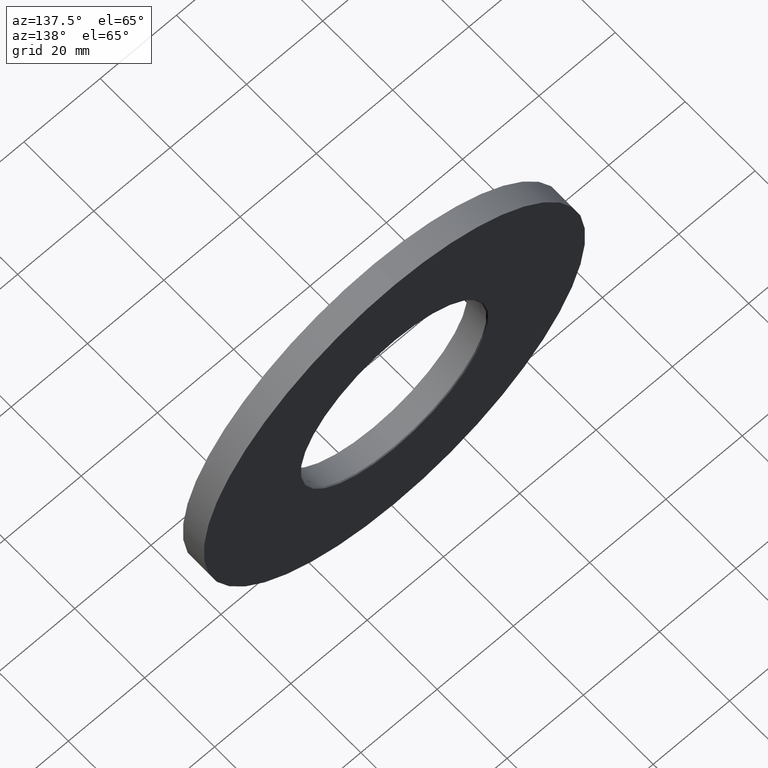
[diagram: clean part render]
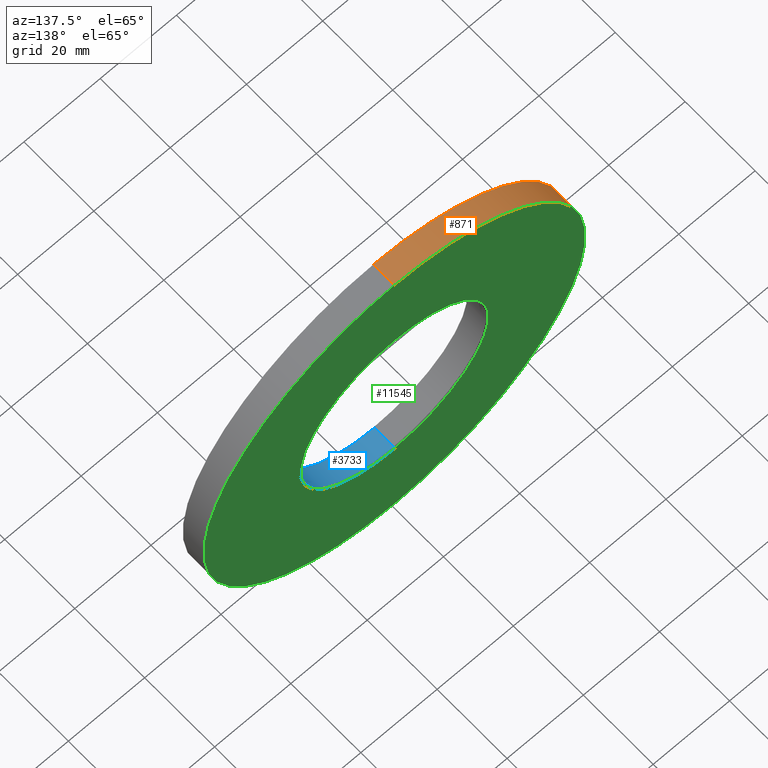
[diagram: same view with three faces highlighted in distinct colors, each labeled with its STEP entity id]
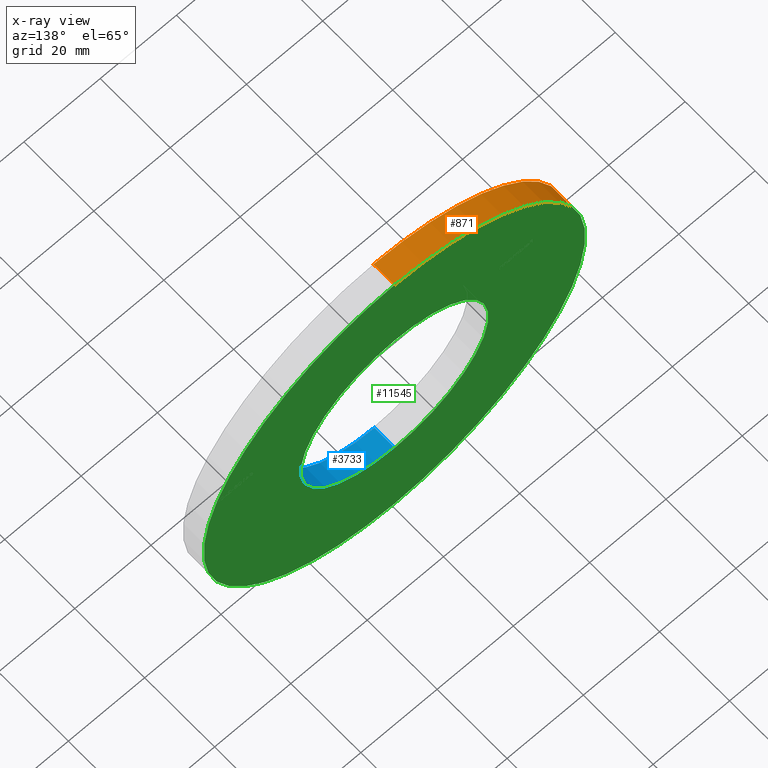
[diagram: x-ray of the same camera — body ghosted, the three highlighted faces saturated]
A machine part, auxiliary view with three faces highlighted in distinct colors.
The next image is the same camera in x-ray (body ghosted, the three faces saturated) — at least one of them is partly hidden behind the body in this view.
Their STEP definitions:

[orange] entity #871 — the highlighted cylindrical surface (partial cylindrical patch) has radius 50 mm, axis along (-0, -1, -0).
#190 = ORIENTED_EDGE ( 'NONE', *, *, #11012, .T. ) ;
#196 = ORIENTED_EDGE ( 'NONE', *, *, #680, .F. ) ;
#462 = VECTOR ( 'NONE', #13812, 1000.000000000000000 ) ;
#680 = EDGE_CURVE ( 'NONE', #13678, #1051, #1247, .T. ) ;
#871 = ADVANCED_FACE ( 'NONE', ( #3747 ), #13785, .T. ) ;
#1051 = VERTEX_POINT ( 'NONE', #10075 ) ;
#1247 = CIRCLE ( 'NONE', #7311, 50.00000000000000000 ) ;
#1510 = ORIENTED_EDGE ( 'NONE', *, *, #2194, .F. ) ;
#2194 = EDGE_CURVE ( 'NONE', #1051, #10254, #12684, .T. ) ;
#2502 = CARTESIAN_POINT ( 'NONE',  ( 0.000000000000000000, 6.000000000000000000, 0.000000000000000000 ) ) ;
#3747 = FACE_OUTER_BOUND ( 'NONE', #9955, .T. ) ;
#4288 = AXIS2_PLACEMENT_3D ( 'NONE', #6597, #10023, #5488 ) ;
#4732 = DIRECTION ( 'NONE',  ( 0.000000000000000000, 1.000000000000000000, 0.000000000000000000 ) ) ;
#5175 = CARTESIAN_POINT ( 'NONE',  ( 0.000000000000000000, 6.000000000000000000, 0.000000000000000000 ) ) ;
#5488 = DIRECTION ( 'NONE',  ( 0.000000000000000000, 0.000000000000000000, 1.000000000000000000 ) ) ;
#5591 = ORIENTED_EDGE ( 'NONE', *, *, #9379, .T. ) ;
#6597 = CARTESIAN_POINT ( 'NONE',  ( 0.000000000000000000, 0.000000000000000000, 0.000000000000000000 ) ) ;
#6873 = VERTEX_POINT ( 'NONE', #13109 ) ;
#6984 = CARTESIAN_POINT ( 'NONE',  ( 6.123233995736766085E-15, 6.000000000000000000, 50.00000000000000000 ) ) ;
#7311 = AXIS2_PLACEMENT_3D ( 'NONE', #2502, #4732, #12775 ) ;
#7519 = AXIS2_PLACEMENT_3D ( 'NONE', #5175, #9722, #12965 ) ;
#8394 = CARTESIAN_POINT ( 'NONE',  ( 0.000000000000000000, 6.000000000000000000, -50.00000000000000000 ) ) ;
#9379 = EDGE_CURVE ( 'NONE', #13678, #6873, #10393, .T. ) ;
#9447 = DIRECTION ( 'NONE',  ( -0.000000000000000000, -1.000000000000000000, -0.000000000000000000 ) ) ;
#9722 = DIRECTION ( 'NONE',  ( -0.000000000000000000, -1.000000000000000000, -0.000000000000000000 ) ) ;
#9955 = EDGE_LOOP ( 'NONE', ( #1510, #196, #5591, #190 ) ) ;
#10023 = DIRECTION ( 'NONE',  ( 0.000000000000000000, 1.000000000000000000, 0.000000000000000000 ) ) ;
#10075 = CARTESIAN_POINT ( 'NONE',  ( 6.123233995736766085E-15, 6.000000000000000000, 50.00000000000000000 ) ) ;
#10254 = VERTEX_POINT ( 'NONE', #12024 ) ;
#10393 = LINE ( 'NONE', #8394, #12867 ) ;
#11012 = EDGE_CURVE ( 'NONE', #6873, #10254, #12122, .T. ) ;
#12024 = CARTESIAN_POINT ( 'NONE',  ( 6.123233995736766085E-15, 0.000000000000000000, 50.00000000000000000 ) ) ;
#12122 = CIRCLE ( 'NONE', #4288, 50.00000000000000000 ) ;
#12408 = CARTESIAN_POINT ( 'NONE',  ( 0.000000000000000000, 6.000000000000000000, -50.00000000000000000 ) ) ;
#12684 = LINE ( 'NONE', #6984, #462 ) ;
#12775 = DIRECTION ( 'NONE',  ( 0.000000000000000000, 0.000000000000000000, 1.000000000000000000 ) ) ;
#12867 = VECTOR ( 'NONE', #9447, 1000.000000000000000 ) ;
#12965 = DIRECTION ( 'NONE',  ( 0.000000000000000000, 0.000000000000000000, -1.000000000000000000 ) ) ;
#13109 = CARTESIAN_POINT ( 'NONE',  ( 0.000000000000000000, 0.000000000000000000, -50.00000000000000000 ) ) ;
#13678 = VERTEX_POINT ( 'NONE', #12408 ) ;
#13785 = CYLINDRICAL_SURFACE ( 'NONE', #7519, 50.00000000000000000 ) ;
#13812 = DIRECTION ( 'NONE',  ( -0.000000000000000000, -1.000000000000000000, -0.000000000000000000 ) ) ;

[blue] entity #3733 — the highlighted cylindrical surface (partial cylindrical patch) has radius 24.35 mm, axis along (-0, -1, -0).
#90 = DIRECTION ( 'NONE',  ( 0.000000000000000000, 0.000000000000000000, -1.000000000000000000 ) ) ;
#930 = CARTESIAN_POINT ( 'NONE',  ( 0.000000000000000000, 0.2499999999999794054, -24.35000000000000497 ) ) ;
#1312 = EDGE_CURVE ( 'NONE', #13671, #3407, #9483, .T. ) ;
#1463 = CARTESIAN_POINT ( 'NONE',  ( 2.982014955923805433E-15, 0.2499999999999794054, 24.35000000000000497 ) ) ;
#1915 = VERTEX_POINT ( 'NONE', #6712 ) ;
#3407 = VERTEX_POINT ( 'NONE', #1463 ) ;
#3614 = CARTESIAN_POINT ( 'NONE',  ( 0.000000000000000000, 6.000000000000000000, 0.000000000000000000 ) ) ;
#3733 = ADVANCED_FACE ( 'NONE', ( #6949 ), #13555, .F. ) ;
#4148 = AXIS2_PLACEMENT_3D ( 'NONE', #3614, #12633, #90 ) ;
#4200 = VECTOR ( 'NONE', #12942, 1000.000000000000000 ) ;
#5415 = CARTESIAN_POINT ( 'NONE',  ( 0.000000000000000000, 0.2499999999999794054, 0.000000000000000000 ) ) ;
#5453 = AXIS2_PLACEMENT_3D ( 'NONE', #11959, #12009, #8484 ) ;
#5614 = CIRCLE ( 'NONE', #5453, 24.35000000000000497 ) ;
#6255 = LINE ( 'NONE', #7069, #13031 ) ;
#6712 = CARTESIAN_POINT ( 'NONE',  ( 2.982014955923805433E-15, 5.750000000000007105, 24.35000000000000497 ) ) ;
#6853 = EDGE_CURVE ( 'NONE', #1915, #12051, #5614, .T. ) ;
#6896 = CARTESIAN_POINT ( 'NONE',  ( 0.000000000000000000, 5.750000000000007105, -24.35000000000000497 ) ) ;
#6949 = FACE_OUTER_BOUND ( 'NONE', #13821, .T. ) ;
#7069 = CARTESIAN_POINT ( 'NONE',  ( 2.982014955923805433E-15, 6.000000000000000000, 24.35000000000000497 ) ) ;
#7114 = ORIENTED_EDGE ( 'NONE', *, *, #14010, .T. ) ;
#7255 = LINE ( 'NONE', #14187, #4200 ) ;
#8484 = DIRECTION ( 'NONE',  ( 0.000000000000000000, 0.000000000000000000, 1.000000000000000000 ) ) ;
#9483 = CIRCLE ( 'NONE', #13140, 24.35000000000000497 ) ;
#10120 = EDGE_CURVE ( 'NONE', #1915, #3407, #6255, .T. ) ;
#11835 = ORIENTED_EDGE ( 'NONE', *, *, #1312, .T. ) ;
#11959 = CARTESIAN_POINT ( 'NONE',  ( 0.000000000000000000, 5.750000000000007105, 0.000000000000000000 ) ) ;
#12005 = ORIENTED_EDGE ( 'NONE', *, *, #6853, .T. ) ;
#12009 = DIRECTION ( 'NONE',  ( 0.000000000000000000, 1.000000000000000000, 0.000000000000000000 ) ) ;
#12051 = VERTEX_POINT ( 'NONE', #6896 ) ;
#12633 = DIRECTION ( 'NONE',  ( -0.000000000000000000, -1.000000000000000000, -0.000000000000000000 ) ) ;
#12707 = DIRECTION ( 'NONE',  ( -0.000000000000000000, -1.000000000000000000, -0.000000000000000000 ) ) ;
#12942 = DIRECTION ( 'NONE',  ( -0.000000000000000000, -1.000000000000000000, -0.000000000000000000 ) ) ;
#12961 = ORIENTED_EDGE ( 'NONE', *, *, #10120, .F. ) ;
#13031 = VECTOR ( 'NONE', #12707, 1000.000000000000000 ) ;
#13140 = AXIS2_PLACEMENT_3D ( 'NONE', #5415, #13344, #13496 ) ;
#13344 = DIRECTION ( 'NONE',  ( -0.000000000000000000, -1.000000000000000000, -0.000000000000000000 ) ) ;
#13496 = DIRECTION ( 'NONE',  ( 0.000000000000000000, 0.000000000000000000, 1.000000000000000000 ) ) ;
#13555 = CYLINDRICAL_SURFACE ( 'NONE', #4148, 24.35000000000000497 ) ;
#13671 = VERTEX_POINT ( 'NONE', #930 ) ;
#13821 = EDGE_LOOP ( 'NONE', ( #12961, #12005, #7114, #11835 ) ) ;
#14010 = EDGE_CURVE ( 'NONE', #12051, #13671, #7255, .T. ) ;
#14187 = CARTESIAN_POINT ( 'NONE',  ( 0.000000000000000000, 6.000000000000000000, -24.35000000000000497 ) ) ;

[green] entity #11545 — the highlighted planar face has unit normal (0, 1, 0).
#160 = VERTEX_POINT ( 'NONE', #13395 ) ;
#604 = CIRCLE ( 'NONE', #6411, 24.59999999999999787 ) ;
#680 = EDGE_CURVE ( 'NONE', #13678, #1051, #1247, .T. ) ;
#1051 = VERTEX_POINT ( 'NONE', #10075 ) ;
#1247 = CIRCLE ( 'NONE', #7311, 50.00000000000000000 ) ;
#1585 = CARTESIAN_POINT ( 'NONE',  ( 0.000000000000000000, 6.000000000000000000, 0.000000000000000000 ) ) ;
#2502 = CARTESIAN_POINT ( 'NONE',  ( 0.000000000000000000, 6.000000000000000000, 0.000000000000000000 ) ) ;
#2755 = ORIENTED_EDGE ( 'NONE', *, *, #12973, .T. ) ;
#2885 = EDGE_LOOP ( 'NONE', ( #2755, #4500 ) ) ;
#3867 = AXIS2_PLACEMENT_3D ( 'NONE', #11480, #12622, #12572 ) ;
#4500 = ORIENTED_EDGE ( 'NONE', *, *, #12113, .T. ) ;
#4663 = AXIS2_PLACEMENT_3D ( 'NONE', #13447, #9950, #6629 ) ;
#4732 = DIRECTION ( 'NONE',  ( 0.000000000000000000, 1.000000000000000000, 0.000000000000000000 ) ) ;
#5018 = DIRECTION ( 'NONE',  ( 0.000000000000000000, 0.000000000000000000, 1.000000000000000000 ) ) ;
#5570 = CIRCLE ( 'NONE', #11284, 50.00000000000000000 ) ;
#5753 = ORIENTED_EDGE ( 'NONE', *, *, #9505, .T. ) ;
#5996 = CARTESIAN_POINT ( 'NONE',  ( 0.000000000000000000, 6.000000000000000000, 0.000000000000000000 ) ) ;
#6411 = AXIS2_PLACEMENT_3D ( 'NONE', #1585, #8564, #9615 ) ;
#6629 = DIRECTION ( 'NONE',  ( 0.000000000000000000, -0.000000000000000000, 1.000000000000000000 ) ) ;
#7311 = AXIS2_PLACEMENT_3D ( 'NONE', #2502, #4732, #12775 ) ;
#7465 = CIRCLE ( 'NONE', #3867, 24.59999999999999787 ) ;
#8162 = ORIENTED_EDGE ( 'NONE', *, *, #680, .T. ) ;
#8564 = DIRECTION ( 'NONE',  ( -0.000000000000000000, -1.000000000000000000, -0.000000000000000000 ) ) ;
#9445 = FACE_OUTER_BOUND ( 'NONE', #12403, .T. ) ;
#9505 = EDGE_CURVE ( 'NONE', #1051, #13678, #5570, .T. ) ;
#9615 = DIRECTION ( 'NONE',  ( 0.000000000000000000, 0.000000000000000000, 1.000000000000000000 ) ) ;
#9950 = DIRECTION ( 'NONE',  ( 0.000000000000000000, 1.000000000000000000, 0.000000000000000000 ) ) ;
#10075 = CARTESIAN_POINT ( 'NONE',  ( 6.123233995736766085E-15, 6.000000000000000000, 50.00000000000000000 ) ) ;
#10686 = FACE_BOUND ( 'NONE', #2885, .T. ) ;
#11284 = AXIS2_PLACEMENT_3D ( 'NONE', #5996, #11856, #5018 ) ;
#11480 = CARTESIAN_POINT ( 'NONE',  ( 0.000000000000000000, 6.000000000000000000, 0.000000000000000000 ) ) ;
#11545 = ADVANCED_FACE ( 'NONE', ( #10686, #9445 ), #13396, .T. ) ;
#11856 = DIRECTION ( 'NONE',  ( 0.000000000000000000, 1.000000000000000000, 0.000000000000000000 ) ) ;
#11898 = CARTESIAN_POINT ( 'NONE',  ( 3.012631125902488431E-15, 6.000000000000000000, -24.59999999999999787 ) ) ;
#12113 = EDGE_CURVE ( 'NONE', #13032, #160, #7465, .T. ) ;
#12403 = EDGE_LOOP ( 'NONE', ( #8162, #5753 ) ) ;
#12408 = CARTESIAN_POINT ( 'NONE',  ( 0.000000000000000000, 6.000000000000000000, -50.00000000000000000 ) ) ;
#12572 = DIRECTION ( 'NONE',  ( 0.000000000000000000, 0.000000000000000000, 1.000000000000000000 ) ) ;
#12622 = DIRECTION ( 'NONE',  ( -0.000000000000000000, -1.000000000000000000, -0.000000000000000000 ) ) ;
#12775 = DIRECTION ( 'NONE',  ( 0.000000000000000000, 0.000000000000000000, 1.000000000000000000 ) ) ;
#12973 = EDGE_CURVE ( 'NONE', #160, #13032, #604, .T. ) ;
#13032 = VERTEX_POINT ( 'NONE', #11898 ) ;
#13395 = CARTESIAN_POINT ( 'NONE',  ( 0.000000000000000000, 6.000000000000000000, 24.59999999999999787 ) ) ;
#13396 = PLANE ( 'NONE',  #4663 ) ;
#13447 = CARTESIAN_POINT ( 'NONE',  ( 0.000000000000000000, 6.000000000000000000, 0.000000000000000000 ) ) ;
#13678 = VERTEX_POINT ( 'NONE', #12408 ) ;